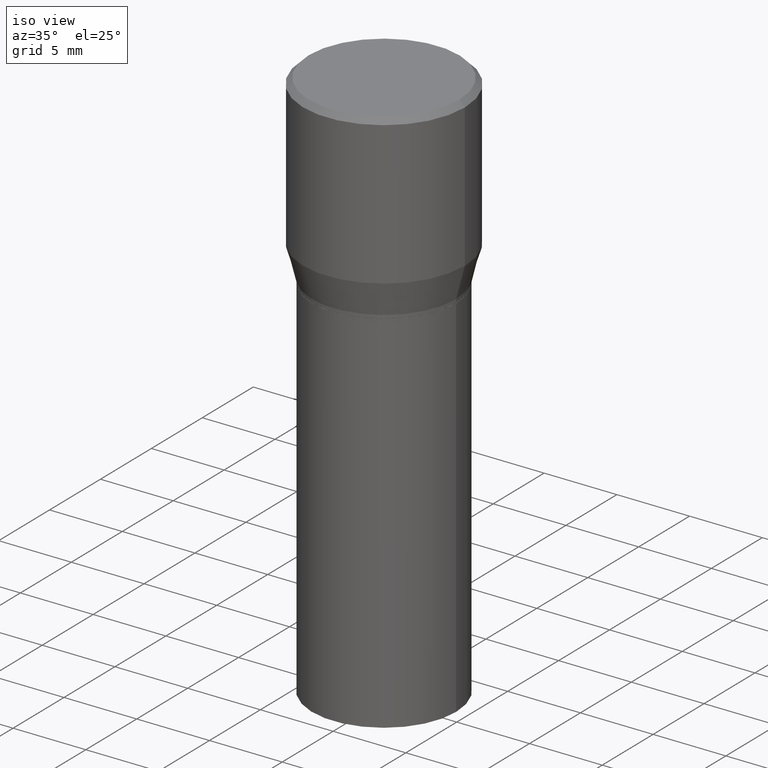
[diagram: clean part render]
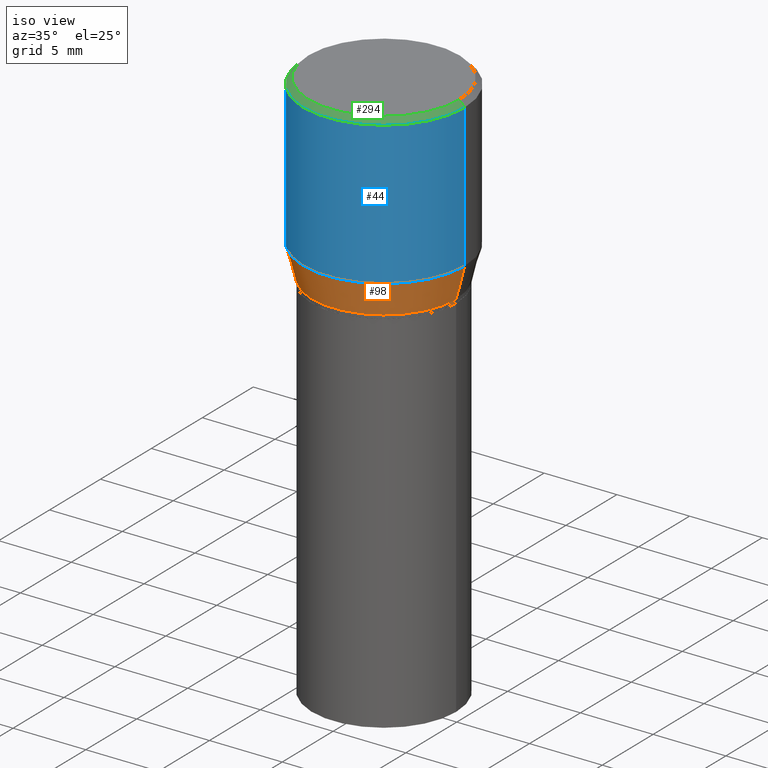
[diagram: same view with three faces highlighted in distinct colors, each labeled with its STEP entity id]
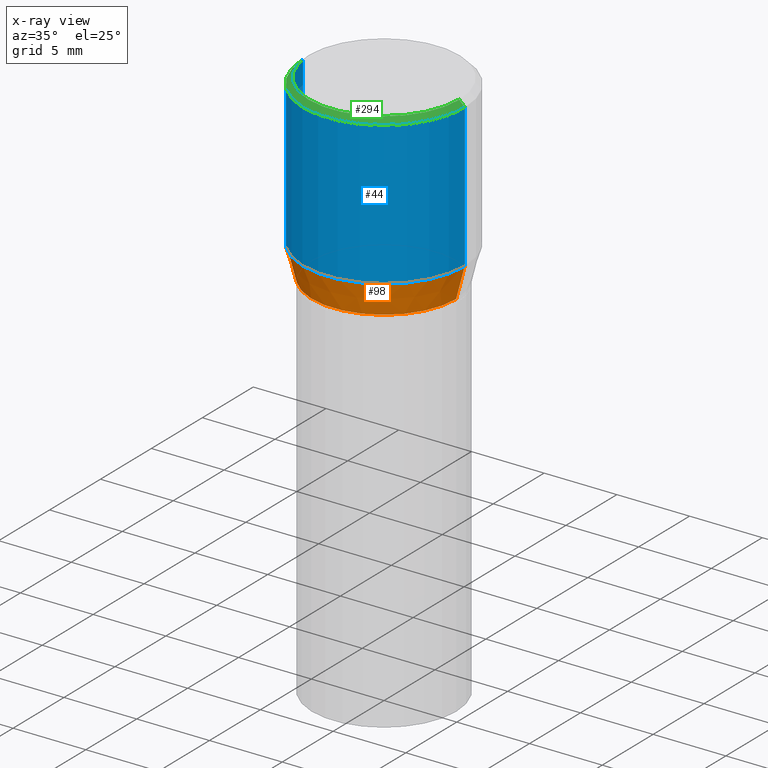
[diagram: x-ray of the same camera — body ghosted, the three highlighted faces saturated]
A machine part, iso view with three faces highlighted in distinct colors.
The next image is the same camera in x-ray (body ghosted, the three faces saturated) — at least one of them is partly hidden behind the body in this view.
Their STEP definitions:

[orange] entity #98 — the highlighted conical surface has half-angle 15 deg.
#10 = DIRECTION ( 'NONE',  ( -0.2588190451025214611, 5.211531920934551042E-15, 0.9659258262890682012 ) ) ;
#47 = ORIENTED_EDGE ( 'NONE', *, *, #224, .T. ) ;
#48 = DIRECTION ( 'NONE',  ( 0.2588190451025214611, 1.565188264969621573E-15, 0.9659258262890682012 ) ) ;
#54 = DIRECTION ( 'NONE',  ( -2.445468806185136597E-29, 3.491481338843145583E-15, 1.000000000000000000 ) ) ;
#84 = AXIS2_PLACEMENT_3D ( 'NONE', #304, #136, #274 ) ;
#91 = DIRECTION ( 'NONE',  ( 1.000000000000000000, -6.982962677686265922E-15, 0.000000000000000000 ) ) ;
#94 = AXIS2_PLACEMENT_3D ( 'NONE', #339, #54, #91 ) ;
#98 = ADVANCED_FACE ( 'NONE', ( #434 ), #317, .T. ) ;
#136 = DIRECTION ( 'NONE',  ( -2.445468806185136597E-29, 3.491481338843145583E-15, 1.000000000000000000 ) ) ;
#149 = DIRECTION ( 'NONE',  ( 1.000000000000000000, -6.982962677686266711E-15, 0.000000000000000000 ) ) ;
#152 = VERTEX_POINT ( 'NONE', #261 ) ;
#163 = VERTEX_POINT ( 'NONE', #376 ) ;
#170 = CIRCLE ( 'NONE', #94, 0.1952999999999999736 ) ;
#173 = EDGE_CURVE ( 'NONE', #163, #152, #170, .T. ) ;
#178 = ORIENTED_EDGE ( 'NONE', *, *, #386, .F. ) ;
#195 = CARTESIAN_POINT ( 'NONE',  ( 9.842606206466859638E-30, -1.405263310189985589E-15, -0.4024834085625100810 ) ) ;
#211 = EDGE_CURVE ( 'NONE', #306, #275, #260, .T. ) ;
#218 = LINE ( 'NONE', #371, #401 ) ;
#221 = ORIENTED_EDGE ( 'NONE', *, *, #211, .F. ) ;
#224 = EDGE_CURVE ( 'NONE', #152, #275, #218, .T. ) ;
#255 = CARTESIAN_POINT ( 'NONE',  ( -0.1952999999999999736, -3.231358930936662090E-16, -0.4900000000000001021 ) ) ;
#258 = DIRECTION ( 'NONE',  ( -2.445468806185136597E-29, 3.491481338843145583E-15, 1.000000000000000000 ) ) ;
#260 = CIRCLE ( 'NONE', #271, 0.2187500000000000000 ) ;
#261 = CARTESIAN_POINT ( 'NONE',  ( 0.1952999999999999736, -3.074598466985269231E-15, -0.4900000000000001021 ) ) ;
#271 = AXIS2_PLACEMENT_3D ( 'NONE', #195, #258, #149 ) ;
#273 = EDGE_LOOP ( 'NONE', ( #178, #349, #47, #221 ) ) ;
#274 = DIRECTION ( 'NONE',  ( 1.000000000000000000, -6.982962677686265922E-15, 0.000000000000000000 ) ) ;
#275 = VERTEX_POINT ( 'NONE', #346 ) ;
#304 = CARTESIAN_POINT ( 'NONE',  ( 1.198279715030717173E-29, -1.710825856033141537E-15, -0.4900000000000001021 ) ) ;
#306 = VERTEX_POINT ( 'NONE', #407 ) ;
#317 = CONICAL_SURFACE ( 'NONE', #84, 0.1952999999999999736, 0.2617993877991501295 ) ;
#339 = CARTESIAN_POINT ( 'NONE',  ( 1.198279715030717173E-29, -1.710825856033141537E-15, -0.4900000000000001021 ) ) ;
#346 = CARTESIAN_POINT ( 'NONE',  ( 0.2187500000000000000, -2.932786395933856235E-15, -0.4024834085625100810 ) ) ;
#349 = ORIENTED_EDGE ( 'NONE', *, *, #173, .T. ) ;
#365 = LINE ( 'NONE', #255, #433 ) ;
#371 = CARTESIAN_POINT ( 'NONE',  ( 0.1952999999999999736, -3.074598466985269231E-15, -0.4900000000000001021 ) ) ;
#376 = CARTESIAN_POINT ( 'NONE',  ( -0.1952999999999999736, -8.704348440421619739E-17, -0.4900000000000001021 ) ) ;
#386 = EDGE_CURVE ( 'NONE', #163, #306, #365, .T. ) ;
#401 = VECTOR ( 'NONE', #48, 39.37007874015747433 ) ;
#407 = CARTESIAN_POINT ( 'NONE',  ( -0.2187500000000000000, 1.490489242852337896E-16, -0.4024834085625100810 ) ) ;
#433 = VECTOR ( 'NONE', #10, 39.37007874015747433 ) ;
#434 = FACE_OUTER_BOUND ( 'NONE', #273, .T. ) ;

[blue] entity #44 — the highlighted cylindrical surface (partial cylindrical patch) has radius 5.5562 mm, axis along (-0, 0, 1).
#6 = ORIENTED_EDGE ( 'NONE', *, *, #389, .F. ) ;
#34 = LINE ( 'NONE', #316, #95 ) ;
#38 = DIRECTION ( 'NONE',  ( -2.445468806185136877E-29, 3.491481338843145188E-15, 1.000000000000000000 ) ) ;
#44 = ADVANCED_FACE ( 'NONE', ( #348 ), #462, .T. ) ;
#53 = VERTEX_POINT ( 'NONE', #141 ) ;
#71 = CARTESIAN_POINT ( 'NONE',  ( 3.668203209277705088E-31, -5.237222008264718399E-17, -0.01499999999999999944 ) ) ;
#76 = EDGE_CURVE ( 'NONE', #345, #53, #460, .T. ) ;
#81 = DIRECTION ( 'NONE',  ( -2.445468806185136877E-29, 3.491481338843145188E-15, 1.000000000000000000 ) ) ;
#95 = VECTOR ( 'NONE', #38, 39.37007874015748143 ) ;
#114 = AXIS2_PLACEMENT_3D ( 'NONE', #313, #398, #276 ) ;
#141 = CARTESIAN_POINT ( 'NONE',  ( 0.2187500000000000000, -1.579895305826517922E-15, -0.01499999999999999944 ) ) ;
#149 = DIRECTION ( 'NONE',  ( 1.000000000000000000, -6.982962677686266711E-15, 0.000000000000000000 ) ) ;
#151 = CARTESIAN_POINT ( 'NONE',  ( -0.2187500000000000000, 1.554312234475219157E-15, -1.076017050993260622E-29 ) ) ;
#179 = CARTESIAN_POINT ( 'NONE',  ( -0.2187500000000000000, 8.254944693389027239E-16, -0.01499999999999999944 ) ) ;
#195 = CARTESIAN_POINT ( 'NONE',  ( 9.842606206466859638E-30, -1.405263310189985589E-15, -0.4024834085625100810 ) ) ;
#206 = DIRECTION ( 'NONE',  ( -2.445468806185136597E-29, 3.491481338843145583E-15, 1.000000000000000000 ) ) ;
#211 = EDGE_CURVE ( 'NONE', #306, #275, #260, .T. ) ;
#258 = DIRECTION ( 'NONE',  ( -2.445468806185136597E-29, 3.491481338843145583E-15, 1.000000000000000000 ) ) ;
#260 = CIRCLE ( 'NONE', #271, 0.2187500000000000000 ) ;
#263 = EDGE_LOOP ( 'NONE', ( #6, #297, #415, #281 ) ) ;
#271 = AXIS2_PLACEMENT_3D ( 'NONE', #195, #258, #149 ) ;
#275 = VERTEX_POINT ( 'NONE', #346 ) ;
#276 = DIRECTION ( 'NONE',  ( 1.000000000000000000, -6.982962677686266711E-15, 4.876176775795935232E-29 ) ) ;
#281 = ORIENTED_EDGE ( 'NONE', *, *, #76, .F. ) ;
#288 = AXIS2_PLACEMENT_3D ( 'NONE', #71, #206, #454 ) ;
#297 = ORIENTED_EDGE ( 'NONE', *, *, #211, .T. ) ;
#306 = VERTEX_POINT ( 'NONE', #407 ) ;
#313 = CARTESIAN_POINT ( 'NONE',  ( 0.000000000000000000, 0.000000000000000000, 0.000000000000000000 ) ) ;
#316 = CARTESIAN_POINT ( 'NONE',  ( 0.2187500000000000000, -1.527523085743870843E-15, 1.066663669705360885E-29 ) ) ;
#321 = VECTOR ( 'NONE', #81, 39.37007874015748143 ) ;
#345 = VERTEX_POINT ( 'NONE', #179 ) ;
#346 = CARTESIAN_POINT ( 'NONE',  ( 0.2187500000000000000, -2.932786395933856235E-15, -0.4024834085625100810 ) ) ;
#348 = FACE_OUTER_BOUND ( 'NONE', #263, .T. ) ;
#368 = LINE ( 'NONE', #151, #321 ) ;
#389 = EDGE_CURVE ( 'NONE', #306, #345, #368, .T. ) ;
#398 = DIRECTION ( 'NONE',  ( -2.445468806185136597E-29, 3.491481338843145583E-15, 1.000000000000000000 ) ) ;
#407 = CARTESIAN_POINT ( 'NONE',  ( -0.2187500000000000000, 1.490489242852337896E-16, -0.4024834085625100810 ) ) ;
#415 = ORIENTED_EDGE ( 'NONE', *, *, #439, .T. ) ;
#439 = EDGE_CURVE ( 'NONE', #275, #53, #34, .T. ) ;
#454 = DIRECTION ( 'NONE',  ( 1.000000000000000000, -6.982962677686266711E-15, 0.000000000000000000 ) ) ;
#460 = CIRCLE ( 'NONE', #288, 0.2187500000000000000 ) ;
#462 = CYLINDRICAL_SURFACE ( 'NONE', #114, 0.2187500000000000000 ) ;

[green] entity #294 — the highlighted conical surface has half-angle 45 deg.
#4 = FACE_OUTER_BOUND ( 'NONE', #428, .T. ) ;
#13 = EDGE_CURVE ( 'NONE', #232, #96, #72, .T. ) ;
#16 = CARTESIAN_POINT ( 'NONE',  ( -0.2037499999999999867, 1.448964755619900421E-15, 1.060151966214468518E-16 ) ) ;
#28 = AXIS2_PLACEMENT_3D ( 'NONE', #423, #92, #299 ) ;
#37 = DIRECTION ( 'NONE',  ( -0.7071067811865452413, 2.468850131082233000E-15, -0.7071067811865497932 ) ) ;
#53 = VERTEX_POINT ( 'NONE', #141 ) ;
#71 = CARTESIAN_POINT ( 'NONE',  ( 3.668203209277705088E-31, -5.237222008264718399E-17, -0.01499999999999999944 ) ) ;
#72 = CIRCLE ( 'NONE', #28, 0.2037499999999999867 ) ;
#76 = EDGE_CURVE ( 'NONE', #345, #53, #460, .T. ) ;
#86 = ORIENTED_EDGE ( 'NONE', *, *, #76, .T. ) ;
#90 = EDGE_CURVE ( 'NONE', #232, #345, #357, .T. ) ;
#92 = DIRECTION ( 'NONE',  ( -2.445468806185136597E-29, 3.491481338843145583E-15, 1.000000000000000000 ) ) ;
#96 = VERTEX_POINT ( 'NONE', #465 ) ;
#100 = CARTESIAN_POINT ( 'NONE',  ( -0.2187500000000000000, 1.475150865661223567E-15, -0.01499999999999999944 ) ) ;
#102 = AXIS2_PLACEMENT_3D ( 'NONE', #120, #113, #111 ) ;
#111 = DIRECTION ( 'NONE',  ( -1.000000000000000000, 6.982962677686266711E-15, 0.000000000000000000 ) ) ;
#113 = DIRECTION ( 'NONE',  ( 2.445468806185136597E-29, -3.491481338843145583E-15, -1.000000000000000000 ) ) ;
#120 = CARTESIAN_POINT ( 'NONE',  ( 3.668203209277705088E-31, -5.237222008264718399E-17, -0.01499999999999999944 ) ) ;
#121 = ORIENTED_EDGE ( 'NONE', *, *, #13, .F. ) ;
#125 = ORIENTED_EDGE ( 'NONE', *, *, #90, .T. ) ;
#129 = EDGE_CURVE ( 'NONE', #96, #53, #308, .T. ) ;
#141 = CARTESIAN_POINT ( 'NONE',  ( 0.2187500000000000000, -1.579895305826517922E-15, -0.01499999999999999944 ) ) ;
#179 = CARTESIAN_POINT ( 'NONE',  ( -0.2187500000000000000, 8.254944693389027239E-16, -0.01499999999999999944 ) ) ;
#191 = VECTOR ( 'NONE', #37, 39.37007874015748143 ) ;
#206 = DIRECTION ( 'NONE',  ( -2.445468806185136597E-29, 3.491481338843145583E-15, 1.000000000000000000 ) ) ;
#214 = ORIENTED_EDGE ( 'NONE', *, *, #129, .F. ) ;
#232 = VERTEX_POINT ( 'NONE', #16 ) ;
#234 = CARTESIAN_POINT ( 'NONE',  ( 0.2187500000000000000, -1.553106157095169608E-15, -0.01499999999999999944 ) ) ;
#245 = CONICAL_SURFACE ( 'NONE', #102, 0.2187500000000000000, 0.7853981633974450594 ) ;
#282 = VECTOR ( 'NONE', #392, 39.37007874015748143 ) ;
#288 = AXIS2_PLACEMENT_3D ( 'NONE', #71, #206, #454 ) ;
#294 = ADVANCED_FACE ( 'NONE', ( #4 ), #245, .T. ) ;
#299 = DIRECTION ( 'NONE',  ( 1.000000000000000000, -6.982962677686266711E-15, 4.875065411617369217E-29 ) ) ;
#308 = LINE ( 'NONE', #234, #282 ) ;
#345 = VERTEX_POINT ( 'NONE', #179 ) ;
#357 = LINE ( 'NONE', #100, #191 ) ;
#392 = DIRECTION ( 'NONE',  ( 0.7071067811865452413, -7.319954787623248157E-15, -0.7071067811865497932 ) ) ;
#423 = CARTESIAN_POINT ( 'NONE',  ( -2.592568563193567003E-45, 3.701500806376036554E-31, 1.060151966214568974E-16 ) ) ;
#428 = EDGE_LOOP ( 'NONE', ( #214, #121, #125, #86 ) ) ;
#454 = DIRECTION ( 'NONE',  ( 1.000000000000000000, -6.982962677686266711E-15, 0.000000000000000000 ) ) ;
#460 = CIRCLE ( 'NONE', #288, 0.2187500000000000000 ) ;
#465 = CARTESIAN_POINT ( 'NONE',  ( 0.2037499999999999867, -1.475466312070559275E-15, 1.060151966214670170E-16 ) ) ;